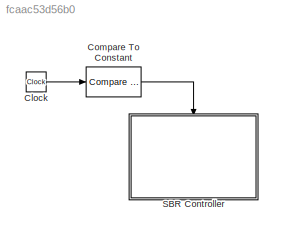
MODEL slx_fcaac53d56b0
KIND model
CONFIG AbsTol = auto
CONFIG EnableMultiTasking = on
CONFIG FixedStep = auto
CONFIG MaxStep = auto
CONFIG MinStep = auto
CONFIG PostLoadFcn = try, \ncodertarget.arduinobase.registry.setBaudRate(gcs,115200)\ndisp('baud rate set to 115200 for external mode hardware serial')\nbaudrate='set_to_115200'\ncatch\ndisp('baud rate setting not needed in this version')\nend
CONFIG RelTol = 1e-3
CONFIG SampleTimeConstraint = Unconstrained
CONFIG SolverName = ode45
CONFIG StartTime = 0.0
CONFIG StopTime = 10.0
BLOCK [Clock] Clock
BLOCK [Reference] Compare To Constant  REF=simulink/Logic and Bit
Operations/Compare
To Constant
  Ports = [1, 1]
  SourceBlock = simulink/Logic and Bit\nOperations/Compare\nTo Constant
  SourceProductBaseCode = SL
  SourceType = Compare To Constant
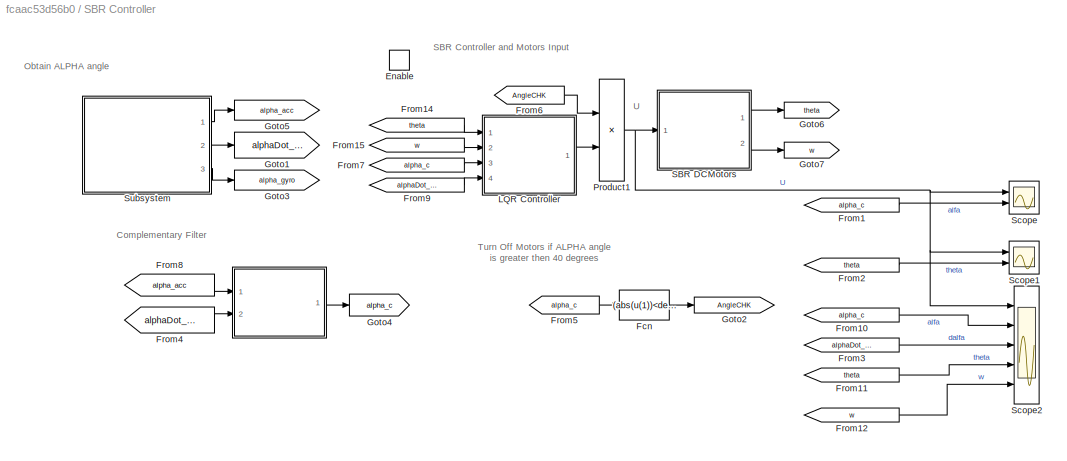
BLOCK [SubSystem] SBR Controller
  Ports = [0, 0, 1]
  RequestExecContextInheritance = off
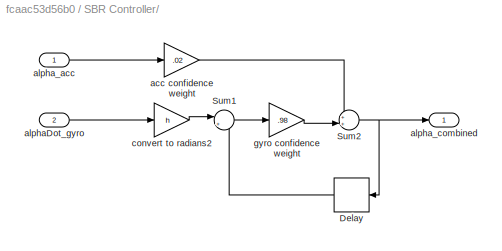
BLOCK [SubSystem] SBR Controller/ 
  Ports = [2, 1]
  RequestExecContextInheritance = off
BLOCK [Delay] SBR Controller/ /Delay
  DelayLength = 1
  InputPortMap = u0
  NameLocation = top
  Ports = [1, 1]
  SampleTime = h
BLOCK [Sum] SBR Controller/ /Sum1
  Inputs = |++
  Ports = [2, 1]
BLOCK [Sum] SBR Controller/ /Sum2
  Inputs = ++|
  Ports = [2, 1]
BLOCK [Gain] SBR Controller/ /acc confidence weight
  Gain = .02
  OutDataTypeStr = single
BLOCK [Inport] SBR Controller/ /alphaDot_gyro
  Port = 2
BLOCK [Inport] SBR Controller/ /alpha_acc
BLOCK [Outport] SBR Controller/ /alpha_combined
BLOCK [Gain] SBR Controller/ /convert to radians2
  Gain = h
  OutDataTypeStr = single
BLOCK [Gain] SBR Controller/ /gyro confidence weight
  Gain = .98
  OutDataTypeStr = single
BLOCK [EnablePort] SBR Controller/Enable
  Ports = []
BLOCK [Fcn] SBR Controller/Fcn
  Expr = (abs(u(1))<deg2rad(40))
BLOCK [From] SBR Controller/From1
  GotoTag = alpha_c
BLOCK [From] SBR Controller/From10
  GotoTag = alpha_c
BLOCK [From] SBR Controller/From11
  GotoTag = theta
BLOCK [From] SBR Controller/From12
  GotoTag = w
BLOCK [From] SBR Controller/From14
  GotoTag = theta
BLOCK [From] SBR Controller/From15
  GotoTag = w
BLOCK [From] SBR Controller/From2
  GotoTag = theta
BLOCK [From] SBR Controller/From3
  GotoTag = alphaDot_gyro
BLOCK [From] SBR Controller/From4
  GotoTag = alphaDot_gyro
BLOCK [From] SBR Controller/From5
  GotoTag = alpha_c
BLOCK [From] SBR Controller/From6
  GotoTag = AngleCHK
BLOCK [From] SBR Controller/From7
  GotoTag = alpha_c
BLOCK [From] SBR Controller/From8
  GotoTag = alpha_acc
BLOCK [From] SBR Controller/From9
  GotoTag = alphaDot_gyro
BLOCK [Goto] SBR Controller/Goto1
  GotoTag = alphaDot_gyro
BLOCK [Goto] SBR Controller/Goto2
  GotoTag = AngleCHK
BLOCK [Goto] SBR Controller/Goto3
  GotoTag = alpha_gyro
BLOCK [Goto] SBR Controller/Goto4
  GotoTag = alpha_c
BLOCK [Goto] SBR Controller/Goto5
  GotoTag = alpha_acc
BLOCK [Goto] SBR Controller/Goto6
  GotoTag = theta
BLOCK [Goto] SBR Controller/Goto7
  GotoTag = w
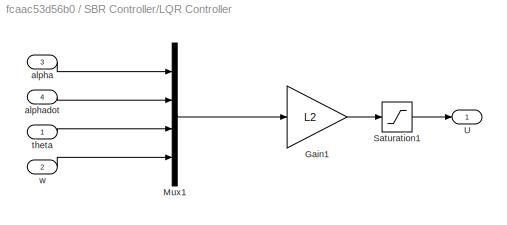
BLOCK [SubSystem] SBR Controller/LQR Controller
  Ports = [4, 1]
  RequestExecContextInheritance = off
BLOCK [Gain] SBR Controller/LQR Controller/Gain1
  Gain = L2
  Multiplication = Matrix(K*u) (u vector)
BLOCK [Mux] SBR Controller/LQR Controller/Mux1
  DisplayOption = bar
  Ports = [4, 1]
BLOCK [Saturate] SBR Controller/LQR Controller/Saturation1
  LowerLimit = -4.8
  UpperLimit = 4.8
BLOCK [Outport] SBR Controller/LQR Controller/U
BLOCK [Inport] SBR Controller/LQR Controller/alpha
  Port = 3
BLOCK [Inport] SBR Controller/LQR Controller/alphadot
  Port = 4
BLOCK [Inport] SBR Controller/LQR Controller/theta
BLOCK [Inport] SBR Controller/LQR Controller/w
  Port = 2
BLOCK [Product] SBR Controller/Product1
  Ports = [2, 1]
  RndMeth = Zero
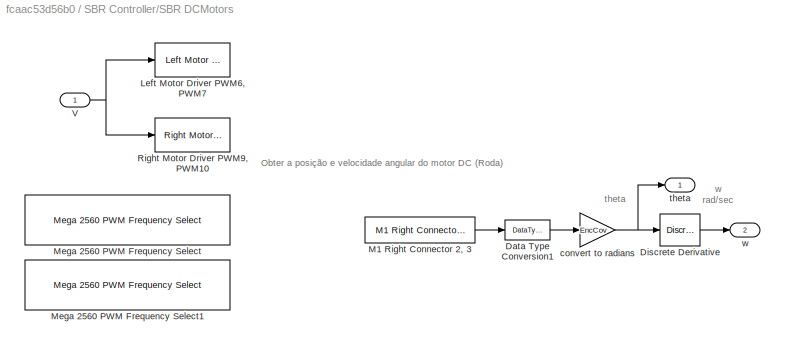
BLOCK [SubSystem] SBR Controller/SBR DCMotors
  Ports = [1, 2]
  RequestExecContextInheritance = off
BLOCK [DataTypeConversion] SBR Controller/SBR DCMotors/Data Type Conversion1
  OutDataTypeStr = single
  RndMeth = Floor
  SaturateOnIntegerOverflow = off
BLOCK [Reference] SBR Controller/SBR DCMotors/Discrete Derivative  REF=simulink/Discrete/Discrete Derivative
  Ports = [1, 1]
  SourceBlock = simulink/Discrete/Discrete Derivative
  SourceProductBaseCode = SL
  SourceType = Discrete Derivative
BLOCK [Reference] SBR Controller/SBR DCMotors/Left Motor Driver PWM6, PWM7  REF=MinSegLibrary_M2V5/Left Motor Driver
PWM6, PWM7
  Ports = [1]
  SourceBlock = MinSegLibrary_M2V5/Left Motor Driver\nPWM6, PWM7
  SourceProductName = Rensselaer Arduino Support Package
BLOCK [Reference] SBR Controller/SBR DCMotors/M1 Right Connector 2, 3  REF=MinSegLibrary_M2V5/M1 Right Connector 2, 3
  Ports = [0, 1]
  SourceBlock = MinSegLibrary_M2V5/M1 Right Connector 2, 3
  SourceProductName = Rensselaer Arduino Support Package
  SourceType = Encoder_arduino
BLOCK [Reference] SBR Controller/SBR DCMotors/Mega 2560 PWM Frequency Select  REF=RASPlib/Mega 2560 PWM Frequency Select
  Ports = []
  SourceBlock = RASPlib/Mega 2560 PWM Frequency Select
  SourceProductName = Rensselaer Arduino Support Package
BLOCK [Reference] SBR Controller/SBR DCMotors/Mega 2560 PWM Frequency Select1  REF=RASPlib/Mega 2560 PWM Frequency Select
  Ports = []
  SourceBlock = RASPlib/Mega 2560 PWM Frequency Select
  SourceProductName = Rensselaer Arduino Support Package
BLOCK [Reference] SBR Controller/SBR DCMotors/Right Motor Driver PWM9, PWM10   REF=MinSegLibrary_M2V5/Right Motor Driver
PWM9, PWM10

  Ports = [1]
  SourceBlock = MinSegLibrary_M2V5/Right Motor Driver\nPWM9, PWM10
  SourceProductName = Rensselaer Arduino Support Package
BLOCK [Inport] SBR Controller/SBR DCMotors/V
BLOCK [Gain] SBR Controller/SBR DCMotors/convert to radians
  Gain = EncCov
  OutDataTypeStr = single
BLOCK [Outport] SBR Controller/SBR DCMotors/theta
BLOCK [Outport] SBR Controller/SBR DCMotors/w
  Port = 2
BLOCK [Scope] SBR Controller/Scope
  Floating = off
  NumInputPorts = 2
  Ports = [2]
  ScopeSpecificationString = Simulink.scopes.TimeScopeBlockCfg('CurrentConfiguration', extmgr.ConfigurationSet(extmgr.Configuration('Core','General UI',true,'FigureColor',[1 1 1]),extmgr.Configuration('Core','Source UI',true),extmgr.Configuration('Sources','WiredSimulink',true,'DataLoggingVariableName','ScopeData2','DataLogging',true,'DataLoggingSaveFormat','StructureWithTime'),extmgr.Configuration('Visuals','Time Domain',tru...<+1696ch>
BLOCK [Scope] SBR Controller/Scope1
  Floating = off
  NumInputPorts = 2
  Ports = [2]
  ScopeSpecificationString = Simulink.scopes.TimeScopeBlockCfg('CurrentConfiguration', extmgr.ConfigurationSet(extmgr.Configuration('Core','General UI',true,'FigureColor',[1 1 1]),extmgr.Configuration('Core','Source UI',true),extmgr.Configuration('Sources','WiredSimulink',true,'DataLoggingVariableName','ScopeData1','DataLogging',true,'DataLoggingSaveFormat','StructureWithTime'),extmgr.Configuration('Visuals','Time Domain',tru...<+1699ch>
BLOCK [Scope] SBR Controller/Scope2
  Floating = off
  NumInputPorts = 5
  Ports = [5]
  ScopeSpecificationString = Simulink.scopes.TimeScopeBlockCfg('CurrentConfiguration', extmgr.ConfigurationSet(extmgr.Configuration('Core','General UI',true,'FigureColor',[1 1 1]),extmgr.Configuration('Core','Source UI',true),extmgr.Configuration('Sources','WiredSimulink',true,'DataLoggingVariableName','ScopeData3','DataLogging',true,'DataLoggingSaveFormat','StructureWithTime'),extmgr.Configuration('Visuals','Time Domain',tru...<+1721ch>
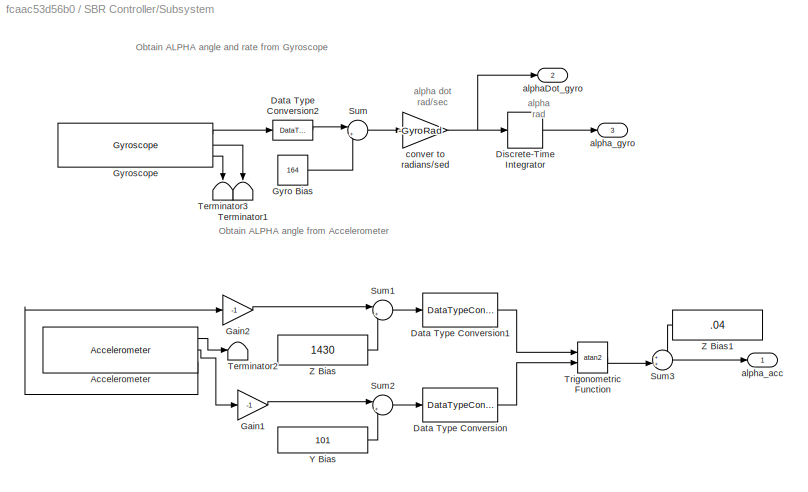
BLOCK [SubSystem] SBR Controller/Subsystem
  Ports = [0, 3]
  RequestExecContextInheritance = off
BLOCK [Reference] SBR Controller/Subsystem/Accelerometer   REF=RASPlib/Accelerometer
  Ports = [0, 3]
  SourceBlock = RASPlib/Accelerometer
  SourceProductName = Rensselaer Arduino Support Package
  SourceType = soMPU6050Accel
BLOCK [DataTypeConversion] SBR Controller/Subsystem/Data Type Conversion
  OutDataTypeStr = single
  RndMeth = Floor
  SaturateOnIntegerOverflow = off
BLOCK [DataTypeConversion] SBR Controller/Subsystem/Data Type Conversion1
  OutDataTypeStr = single
  RndMeth = Floor
  SaturateOnIntegerOverflow = off
BLOCK [DataTypeConversion] SBR Controller/Subsystem/Data Type Conversion2
  OutDataTypeStr = single
  RndMeth = Floor
  SaturateOnIntegerOverflow = off
BLOCK [DiscreteIntegrator] SBR Controller/Subsystem/Discrete-Time Integrator
  ICPrevOutput = DiscIntNeverNeededParam
  ICPrevScaledInput = DiscIntNeverNeededParam
  Ports = [1, 1]
  SampleTime = h
BLOCK [Gain] SBR Controller/Subsystem/Gain1
  Gain = -1
BLOCK [Gain] SBR Controller/Subsystem/Gain2
  Gain = -1
BLOCK [Constant] SBR Controller/Subsystem/Gyro Bias
  SampleTime = h
  Value = 164
BLOCK [Reference] SBR Controller/Subsystem/Gyroscope   REF=RASPlib/Gyroscope
  Ports = [0, 3]
  SourceBlock = RASPlib/Gyroscope
  SourceProductName = Rensselaer Arduino Support Package
  SourceType = soMPU6050Gyro
BLOCK [Sum] SBR Controller/Subsystem/Sum
  Inputs = |+-
  Ports = [2, 1]
BLOCK [Sum] SBR Controller/Subsystem/Sum1
  Inputs = |+-
  Ports = [2, 1]
BLOCK [Sum] SBR Controller/Subsystem/Sum2
  Inputs = |+-
  Ports = [2, 1]
BLOCK [Sum] SBR Controller/Subsystem/Sum3
  Inputs = ++|
  Ports = [2, 1]
BLOCK [Terminator] SBR Controller/Subsystem/Terminator1
  NameLocation = left
BLOCK [Terminator] SBR Controller/Subsystem/Terminator2
BLOCK [Terminator] SBR Controller/Subsystem/Terminator3
  NameLocation = left
BLOCK [Trigonometry] SBR Controller/Subsystem/Trigonometric Function
  Operator = atan2
  Ports = [2, 1]
BLOCK [Constant] SBR Controller/Subsystem/Y Bias
  Value = 101
BLOCK [Constant] SBR Controller/Subsystem/Z Bias
  Value = 1430
BLOCK [Constant] SBR Controller/Subsystem/Z Bias1
  NameLocation = top
  OutDataTypeStr = single
  Value = .04
BLOCK [Outport] SBR Controller/Subsystem/alphaDot_gyro
  NameLocation = top
  Port = 2
BLOCK [Outport] SBR Controller/Subsystem/alpha_acc
BLOCK [Outport] SBR Controller/Subsystem/alpha_gyro
  Port = 3
BLOCK [Gain] SBR Controller/Subsystem/conver to radians//sed
  Gain = -GyroRad
  OutDataTypeStr = single
ANNOTATION SBR Controller: Complementary Filter
ANNOTATION SBR Controller: Obtain ALPHA angle
ANNOTATION SBR Controller: SBR Controller and Motors Input
ANNOTATION SBR Controller: Turn Off Motors if ALPHA angle is greater then 40 degrees
ANNOTATION SBR Controller: U
ANNOTATION SBR Controller/SBR DCMotors: Obter a posição e velocidade angular do motor DC (Roda)
ANNOTATION SBR Controller/SBR DCMotors: theta
ANNOTATION SBR Controller/SBR DCMotors: w rad/sec
ANNOTATION SBR Controller/Subsystem: Obtain ALPHA angle and rate from Gyroscope
ANNOTATION SBR Controller/Subsystem: Obtain ALPHA angle from Accelerometer
ANNOTATION SBR Controller/Subsystem: alpha rad
ANNOTATION SBR Controller/Subsystem: alpha dot rad/sec
LINE Clock:1 -> Compare To Constant:1
LINE Compare To Constant:1 -> SBR Controller:enable
LINE SBR Controller/ /Delay:1 -> SBR Controller/ /Sum1:2
LINE SBR Controller/ /Sum1:1 -> SBR Controller/ /gyro confidence weight:1
NET SBR Controller/ /Sum2:1 -> SBR Controller/ /Delay:1, SBR Controller/ /alpha_combined:1
LINE SBR Controller/ /acc confidence weight:1 -> SBR Controller/ /Sum2:1
LINE SBR Controller/ /alphaDot_gyro:1 -> SBR Controller/ /convert to radians2:1
LINE SBR Controller/ /alpha_acc:1 -> SBR Controller/ /acc confidence weight:1
LINE SBR Controller/ /convert to radians2:1 -> SBR Controller/ /Sum1:1
LINE SBR Controller/ /gyro confidence weight:1 -> SBR Controller/ /Sum2:2
LINE SBR Controller/ :1 -> SBR Controller/Goto4:1
LINE SBR Controller/Fcn:1 -> SBR Controller/Goto2:1
LINE SBR Controller/From10:1 -> SBR Controller/Scope2:2
LINE SBR Controller/From11:1 -> SBR Controller/Scope2:4
LINE SBR Controller/From12:1 -> SBR Controller/Scope2:5
LINE SBR Controller/From14:1 -> SBR Controller/LQR Controller:1
LINE SBR Controller/From15:1 -> SBR Controller/LQR Controller:2
LINE SBR Controller/From1:1 -> SBR Controller/Scope:2
LINE SBR Controller/From2:1 -> SBR Controller/Scope1:2
LINE SBR Controller/From3:1 -> SBR Controller/Scope2:3
LINE SBR Controller/From4:1 -> SBR Controller/ :2
LINE SBR Controller/From5:1 -> SBR Controller/Fcn:1
LINE SBR Controller/From6:1 -> SBR Controller/Product1:1
LINE SBR Controller/From7:1 -> SBR Controller/LQR Controller:3
LINE SBR Controller/From8:1 -> SBR Controller/ :1
LINE SBR Controller/From9:1 -> SBR Controller/LQR Controller:4
LINE SBR Controller/LQR Controller/Gain1:1 -> SBR Controller/LQR Controller/Saturation1:1
LINE SBR Controller/LQR Controller/Mux1:1 -> SBR Controller/LQR Controller/Gain1:1
LINE SBR Controller/LQR Controller/Saturation1:1 -> SBR Controller/LQR Controller/U:1
LINE SBR Controller/LQR Controller/alpha:1 -> SBR Controller/LQR Controller/Mux1:1
LINE SBR Controller/LQR Controller/alphadot:1 -> SBR Controller/LQR Controller/Mux1:2
LINE SBR Controller/LQR Controller/theta:1 -> SBR Controller/LQR Controller/Mux1:3
LINE SBR Controller/LQR Controller/w:1 -> SBR Controller/LQR Controller/Mux1:4
LINE SBR Controller/LQR Controller:1 -> SBR Controller/Product1:2
NET SBR Controller/Product1:1 -> SBR Controller/SBR DCMotors:1, SBR Controller/Scope1:1, SBR Controller/Scope2:1, SBR Controller/Scope:1
LINE SBR Controller/SBR DCMotors/Data Type Conversion1:1 -> SBR Controller/SBR DCMotors/convert to radians:1
LINE SBR Controller/SBR DCMotors/Discrete Derivative:1 -> SBR Controller/SBR DCMotors/w:1
LINE SBR Controller/SBR DCMotors/M1 Right Connector 2, 3:1 -> SBR Controller/SBR DCMotors/Data Type Conversion1:1
NET SBR Controller/SBR DCMotors/V:1 -> SBR Controller/SBR DCMotors/Left Motor Driver PWM6, PWM7:1, SBR Controller/SBR DCMotors/Right Motor Driver PWM9, PWM10 :1
NET SBR Controller/SBR DCMotors/convert to radians:1 -> SBR Controller/SBR DCMotors/Discrete Derivative:1, SBR Controller/SBR DCMotors/theta:1
LINE SBR Controller/SBR DCMotors:1 -> SBR Controller/Goto6:1
LINE SBR Controller/SBR DCMotors:2 -> SBR Controller/Goto7:1
LINE SBR Controller/Subsystem/Accelerometer :1 -> SBR Controller/Subsystem/Terminator2:1
LINE SBR Controller/Subsystem/Accelerometer :2 -> SBR Controller/Subsystem/Gain1:1
LINE SBR Controller/Subsystem/Accelerometer :3 -> SBR Controller/Subsystem/Gain2:1
LINE SBR Controller/Subsystem/Data Type Conversion1:1 -> SBR Controller/Subsystem/Trigonometric Function:1
LINE SBR Controller/Subsystem/Data Type Conversion2:1 -> SBR Controller/Subsystem/Sum:1
LINE SBR Controller/Subsystem/Data Type Conversion:1 -> SBR Controller/Subsystem/Trigonometric Function:2
LINE SBR Controller/Subsystem/Discrete-Time Integrator:1 -> SBR Controller/Subsystem/alpha_gyro:1
LINE SBR Controller/Subsystem/Gain1:1 -> SBR Controller/Subsystem/Sum2:1
LINE SBR Controller/Subsystem/Gain2:1 -> SBR Controller/Subsystem/Sum1:1
LINE SBR Controller/Subsystem/Gyro Bias:1 -> SBR Controller/Subsystem/Sum:2
LINE SBR Controller/Subsystem/Gyroscope :1 -> SBR Controller/Subsystem/Data Type Conversion2:1
LINE SBR Controller/Subsystem/Gyroscope :2 -> SBR Controller/Subsystem/Terminator1:1
LINE SBR Controller/Subsystem/Gyroscope :3 -> SBR Controller/Subsystem/Terminator3:1
LINE SBR Controller/Subsystem/Sum1:1 -> SBR Controller/Subsystem/Data Type Conversion1:1
LINE SBR Controller/Subsystem/Sum2:1 -> SBR Controller/Subsystem/Data Type Conversion:1
LINE SBR Controller/Subsystem/Sum3:1 -> SBR Controller/Subsystem/alpha_acc:1
LINE SBR Controller/Subsystem/Sum:1 -> SBR Controller/Subsystem/conver to radians//sed:1
LINE SBR Controller/Subsystem/Trigonometric Function:1 -> SBR Controller/Subsystem/Sum3:2
LINE SBR Controller/Subsystem/Y Bias:1 -> SBR Controller/Subsystem/Sum2:2
LINE SBR Controller/Subsystem/Z Bias1:1 -> SBR Controller/Subsystem/Sum3:1
LINE SBR Controller/Subsystem/Z Bias:1 -> SBR Controller/Subsystem/Sum1:2
NET SBR Controller/Subsystem/conver to radians//sed:1 -> SBR Controller/Subsystem/Discrete-Time Integrator:1, SBR Controller/Subsystem/alphaDot_gyro:1
LINE SBR Controller/Subsystem:1 -> SBR Controller/Goto5:1
LINE SBR Controller/Subsystem:2 -> SBR Controller/Goto1:1
LINE SBR Controller/Subsystem:3 -> SBR Controller/Goto3:1
note: NET lines group one-source signal fan-out (src -> all destinations, sorted); 1:1 wires keep LINE
